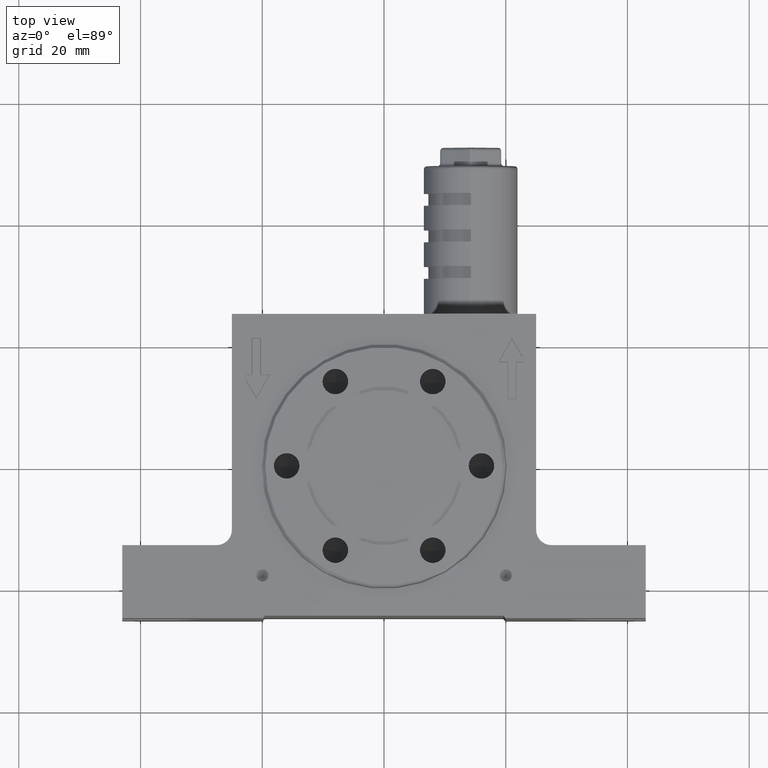
[diagram: clean part render]
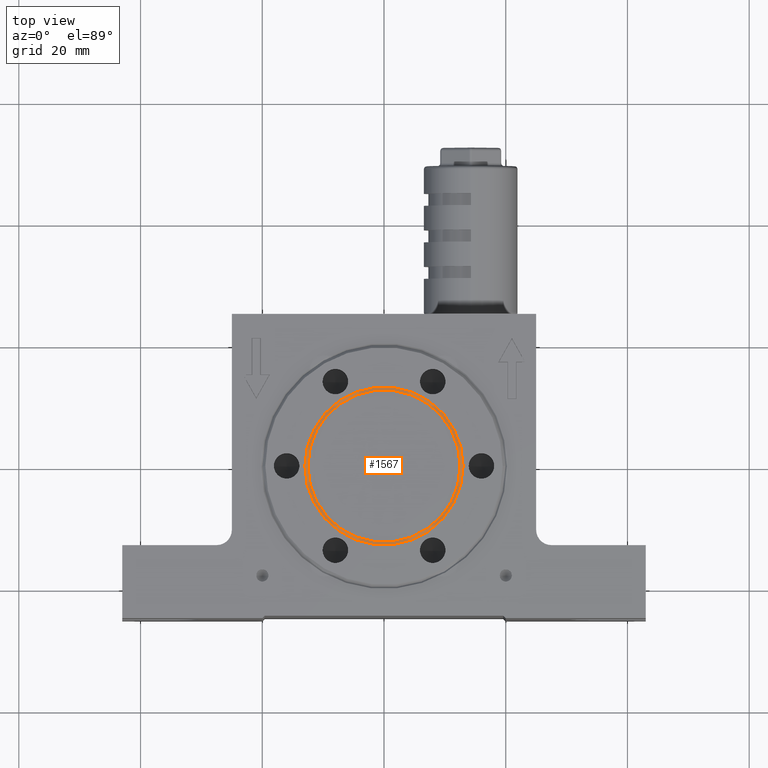
[diagram: same view with one face highlighted and labeled with its STEP entity id]
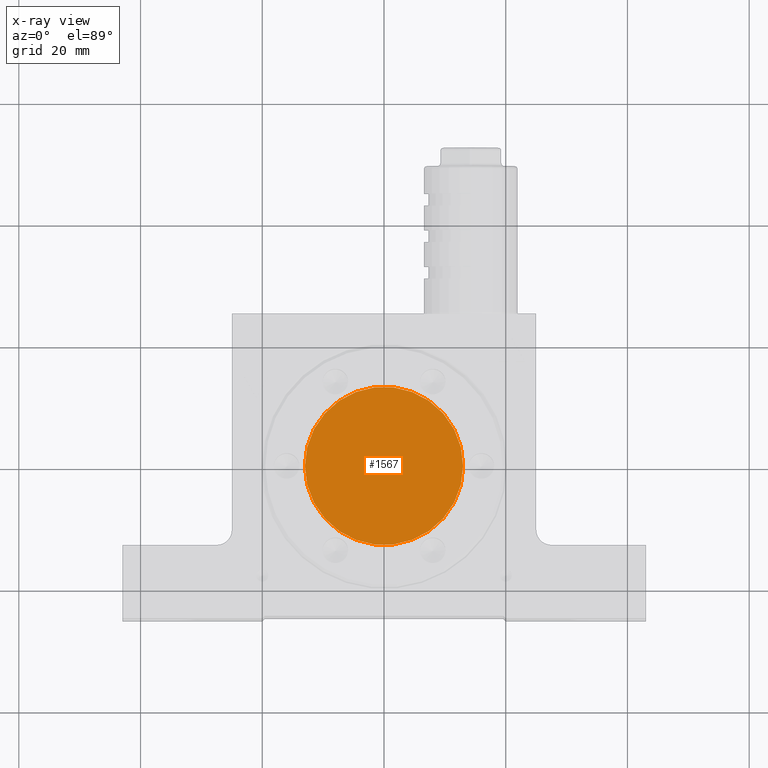
[diagram: x-ray of the same camera — body ghosted, the highlighted face saturated]
A machine part, top view. The second image highlights one B-rep face of the part: STEP entity #1567.
The next image is the same camera in x-ray: the body ghosted, the highlighted face saturated — about 0% of this face is hidden behind the body in this view.
In plain terms, the highlighted planar face has unit normal (0, -0, 1).
Its self-contained STEP definition (entity closure, byte-faithful):
#220 = CARTESIAN_POINT ( 'NONE',  ( 13.00000000000000000, 0.0000000000000000000, 15.94999999999999900 ) ) ;
#327 = PLANE ( 'NONE',  #2591 ) ;
#341 = CARTESIAN_POINT ( 'NONE',  ( 0.0000000000000000000, 0.0000000000000000000, 15.94999999999999900 ) ) ;
#350 = EDGE_CURVE ( 'NONE', #5800, #2408, #1938, .T. ) ;
#923 = FACE_OUTER_BOUND ( 'NONE', #1986, .T. ) ;
#963 = EDGE_CURVE ( 'NONE', #2408, #5800, #1422, .T. ) ;
#1422 = CIRCLE ( 'NONE', #2478, 13.00000000000000000 ) ;
#1567 = ADVANCED_FACE ( 'NONE', ( #923 ), #327, .T. ) ;
#1605 = ORIENTED_EDGE ( 'NONE', *, *, #350, .T. ) ;
#1938 = CIRCLE ( 'NONE', #8551, 13.00000000000000000 ) ;
#1986 = EDGE_LOOP ( 'NONE', ( #6852, #1605 ) ) ;
#2374 = CARTESIAN_POINT ( 'NONE',  ( 0.0000000000000000000, 0.0000000000000000000, 15.94999999999999900 ) ) ;
#2408 = VERTEX_POINT ( 'NONE', #220 ) ;
#2478 = AXIS2_PLACEMENT_3D ( 'NONE', #341, #9282, #5543 ) ;
#2591 = AXIS2_PLACEMENT_3D ( 'NONE', #2632, #7941, #3345 ) ;
#2632 = CARTESIAN_POINT ( 'NONE',  ( 0.0000000000000000000, 0.0000000000000000000, 15.94999999999999900 ) ) ;
#3345 = DIRECTION ( 'NONE',  ( 1.000000000000000000, 0.0000000000000000000, 0.0000000000000000000 ) ) ;
#3779 = DIRECTION ( 'NONE',  ( 1.000000000000000000, 0.0000000000000000000, 0.0000000000000000000 ) ) ;
#5543 = DIRECTION ( 'NONE',  ( 1.000000000000000000, 0.0000000000000000000, 0.0000000000000000000 ) ) ;
#5554 = DIRECTION ( 'NONE',  ( -0.0000000000000000000, -0.0000000000000000000, 1.000000000000000000 ) ) ;
#5800 = VERTEX_POINT ( 'NONE', #5923 ) ;
#5923 = CARTESIAN_POINT ( 'NONE',  ( -13.00000000000000000, 1.592040838891559100E-015, 15.94999999999999900 ) ) ;
#6852 = ORIENTED_EDGE ( 'NONE', *, *, #963, .T. ) ;
#7941 = DIRECTION ( 'NONE',  ( 0.0000000000000000000, -0.0000000000000000000, 1.000000000000000000 ) ) ;
#8551 = AXIS2_PLACEMENT_3D ( 'NONE', #2374, #5554, #3779 ) ;
#9282 = DIRECTION ( 'NONE',  ( -0.0000000000000000000, -0.0000000000000000000, 1.000000000000000000 ) ) ;